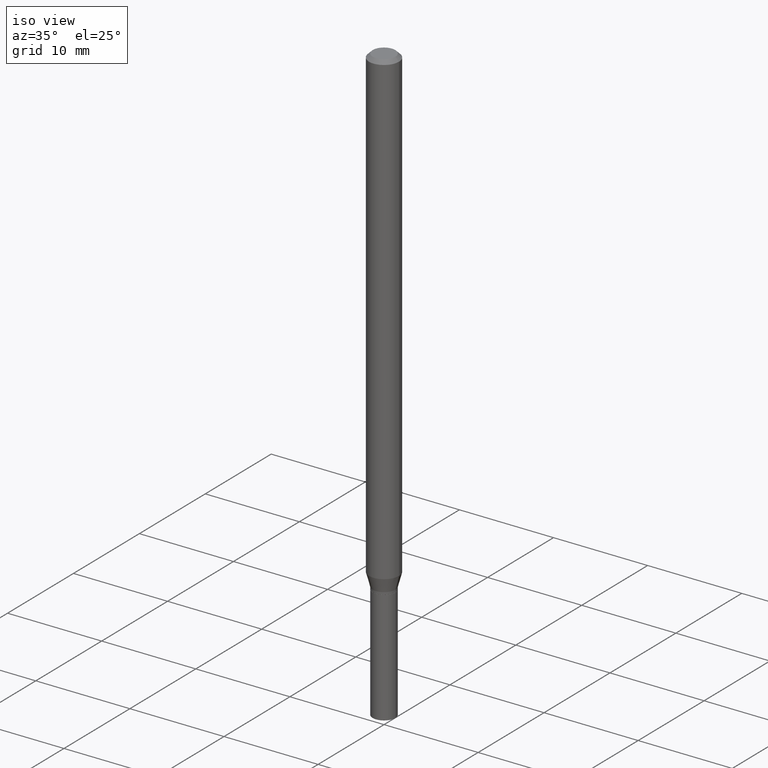
[diagram: clean part render]
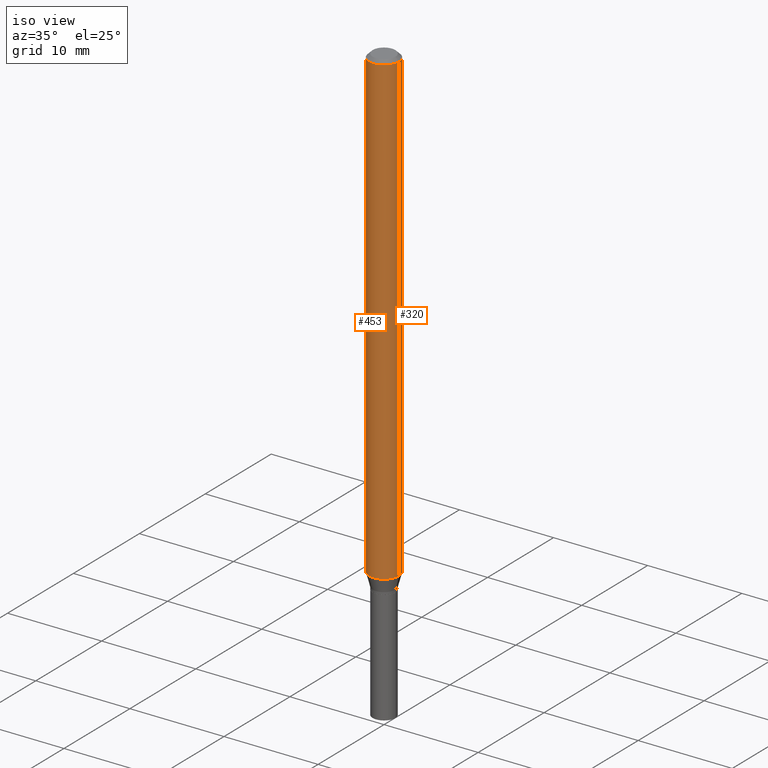
[diagram: same view with one multi-face feature highlighted, each face labeled with its STEP entity id]
A machine part, iso view. The highlighted faces form ONE feature: a constant-radius fillet chain: 2 tangent blend faces with common blend radius 1.5875 mm. The faces share edges in the B-rep.
Their STEP definitions:
[1] entity #320 (Cylinder):
#23 = CARTESIAN_POINT ( 'NONE',  ( 3.668203209277705088E-31, -5.237222008264718399E-17, -0.01499999999999999944 ) ) ;
#30 = VERTEX_POINT ( 'NONE', #137 ) ;
#31 = EDGE_CURVE ( 'NONE', #30, #222, #383, .T. ) ;
#32 = ORIENTED_EDGE ( 'NONE', *, *, #161, .F. ) ;
#42 = VERTEX_POINT ( 'NONE', #55 ) ;
#55 = CARTESIAN_POINT ( 'NONE',  ( 0.06250000000000000000, -7.276314278870707076E-15, -1.959019237886465481 ) ) ;
#65 = VECTOR ( 'NONE', #461, 39.37007874015748143 ) ;
#72 = AXIS2_PLACEMENT_3D ( 'NONE', #326, #463, #111 ) ;
#107 = VECTOR ( 'NONE', #281, 39.37007874015748143 ) ;
#111 = DIRECTION ( 'NONE',  ( 1.000000000000000000, -6.982962677686266711E-15, 4.876176775795935793E-29 ) ) ;
#132 = CIRCLE ( 'NONE', #255, 0.06250000000000000000 ) ;
#137 = CARTESIAN_POINT ( 'NONE',  ( -0.06250000000000000000, -6.395789901665252001E-15, -1.959019237886465481 ) ) ;
#148 = CARTESIAN_POINT ( 'NONE',  ( 0.06250000000000000000, -4.888073874380388472E-16, -0.01499999999999999944 ) ) ;
#161 = EDGE_CURVE ( 'NONE', #361, #222, #132, .T. ) ;
#170 = CARTESIAN_POINT ( 'NONE',  ( -0.06250000000000000000, -3.002036455948918824E-15, -0.01499999999999999944 ) ) ;
#173 = EDGE_CURVE ( 'NONE', #42, #30, #449, .T. ) ;
#181 = CYLINDRICAL_SURFACE ( 'NONE', #72, 0.06250000000000000000 ) ;
#221 = FACE_OUTER_BOUND ( 'NONE', #305, .T. ) ;
#222 = VERTEX_POINT ( 'NONE', #170 ) ;
#241 = ORIENTED_EDGE ( 'NONE', *, *, #31, .T. ) ;
#255 = AXIS2_PLACEMENT_3D ( 'NONE', #23, #356, #308 ) ;
#260 = ORIENTED_EDGE ( 'NONE', *, *, #353, .F. ) ;
#273 = LINE ( 'NONE', #299, #65 ) ;
#279 = CARTESIAN_POINT ( 'NONE',  ( -0.06250000000000000000, 4.440892098500626162E-16, -3.074334431409316114E-30 ) ) ;
#281 = DIRECTION ( 'NONE',  ( -2.445468806185136877E-29, 3.491481338843145188E-15, 1.000000000000000000 ) ) ;
#291 = CARTESIAN_POINT ( 'NONE',  ( 4.790720436967930841E-29, -6.839879111515315406E-15, -1.959019237886465481 ) ) ;
#299 = CARTESIAN_POINT ( 'NONE',  ( 0.06250000000000000000, -4.364351673553916694E-16, 3.047610484872459871E-30 ) ) ;
#305 = EDGE_LOOP ( 'NONE', ( #425, #241, #32, #260 ) ) ;
#308 = DIRECTION ( 'NONE',  ( 1.000000000000000000, -6.982962677686266711E-15, 0.000000000000000000 ) ) ;
#310 = AXIS2_PLACEMENT_3D ( 'NONE', #291, #464, #460 ) ;
#320 = ADVANCED_FACE ( 'NONE', ( #221 ), #181, .T. ) ;
#326 = CARTESIAN_POINT ( 'NONE',  ( 0.000000000000000000, 0.000000000000000000, 0.000000000000000000 ) ) ;
#353 = EDGE_CURVE ( 'NONE', #42, #361, #273, .T. ) ;
#356 = DIRECTION ( 'NONE',  ( -2.445468806185136597E-29, 3.491481338843145583E-15, 1.000000000000000000 ) ) ;
#361 = VERTEX_POINT ( 'NONE', #148 ) ;
#383 = LINE ( 'NONE', #279, #107 ) ;
#425 = ORIENTED_EDGE ( 'NONE', *, *, #173, .T. ) ;
#449 = CIRCLE ( 'NONE', #310, 0.06250000000000000000 ) ;
#460 = DIRECTION ( 'NONE',  ( 1.000000000000000000, -6.982962677686262766E-15, 0.000000000000000000 ) ) ;
#461 = DIRECTION ( 'NONE',  ( -2.445468806185136877E-29, 3.491481338843145188E-15, 1.000000000000000000 ) ) ;
#463 = DIRECTION ( 'NONE',  ( -2.445468806185136597E-29, 3.491481338843145583E-15, 1.000000000000000000 ) ) ;
#464 = DIRECTION ( 'NONE',  ( -2.445468806185136597E-29, 3.491481338843145583E-15, 1.000000000000000000 ) ) ;
[2] entity #453 (Cylinder):
#12 = ORIENTED_EDGE ( 'NONE', *, *, #89, .F. ) ;
#22 = ORIENTED_EDGE ( 'NONE', *, *, #154, .T. ) ;
#30 = VERTEX_POINT ( 'NONE', #137 ) ;
#31 = EDGE_CURVE ( 'NONE', #30, #222, #383, .T. ) ;
#42 = VERTEX_POINT ( 'NONE', #55 ) ;
#48 = CARTESIAN_POINT ( 'NONE',  ( 4.790720436967930841E-29, -6.839879111515315406E-15, -1.959019237886465481 ) ) ;
#51 = DIRECTION ( 'NONE',  ( -2.445468806185136597E-29, 3.491481338843145583E-15, 1.000000000000000000 ) ) ;
#55 = CARTESIAN_POINT ( 'NONE',  ( 0.06250000000000000000, -7.276314278870707076E-15, -1.959019237886465481 ) ) ;
#65 = VECTOR ( 'NONE', #461, 39.37007874015748143 ) ;
#77 = AXIS2_PLACEMENT_3D ( 'NONE', #417, #198, #134 ) ;
#89 = EDGE_CURVE ( 'NONE', #222, #361, #292, .T. ) ;
#107 = VECTOR ( 'NONE', #281, 39.37007874015748143 ) ;
#134 = DIRECTION ( 'NONE',  ( 1.000000000000000000, -6.982962677686266711E-15, 0.000000000000000000 ) ) ;
#137 = CARTESIAN_POINT ( 'NONE',  ( -0.06250000000000000000, -6.395789901665252001E-15, -1.959019237886465481 ) ) ;
#138 = EDGE_LOOP ( 'NONE', ( #375, #22, #233, #12 ) ) ;
#148 = CARTESIAN_POINT ( 'NONE',  ( 0.06250000000000000000, -4.888073874380388472E-16, -0.01499999999999999944 ) ) ;
#154 = EDGE_CURVE ( 'NONE', #30, #42, #411, .T. ) ;
#159 = DIRECTION ( 'NONE',  ( 1.000000000000000000, -6.982962677686266711E-15, 4.876176775795935793E-29 ) ) ;
#162 = DIRECTION ( 'NONE',  ( 1.000000000000000000, -6.982962677686262766E-15, 0.000000000000000000 ) ) ;
#163 = FACE_OUTER_BOUND ( 'NONE', #138, .T. ) ;
#170 = CARTESIAN_POINT ( 'NONE',  ( -0.06250000000000000000, -3.002036455948918824E-15, -0.01499999999999999944 ) ) ;
#198 = DIRECTION ( 'NONE',  ( -2.445468806185136597E-29, 3.491481338843145583E-15, 1.000000000000000000 ) ) ;
#222 = VERTEX_POINT ( 'NONE', #170 ) ;
#233 = ORIENTED_EDGE ( 'NONE', *, *, #353, .T. ) ;
#273 = LINE ( 'NONE', #299, #65 ) ;
#279 = CARTESIAN_POINT ( 'NONE',  ( -0.06250000000000000000, 4.440892098500626162E-16, -3.074334431409316114E-30 ) ) ;
#281 = DIRECTION ( 'NONE',  ( -2.445468806185136877E-29, 3.491481338843145188E-15, 1.000000000000000000 ) ) ;
#292 = CIRCLE ( 'NONE', #77, 0.06250000000000000000 ) ;
#299 = CARTESIAN_POINT ( 'NONE',  ( 0.06250000000000000000, -4.364351673553916694E-16, 3.047610484872459871E-30 ) ) ;
#343 = AXIS2_PLACEMENT_3D ( 'NONE', #435, #440, #159 ) ;
#353 = EDGE_CURVE ( 'NONE', #42, #361, #273, .T. ) ;
#361 = VERTEX_POINT ( 'NONE', #148 ) ;
#375 = ORIENTED_EDGE ( 'NONE', *, *, #31, .F. ) ;
#383 = LINE ( 'NONE', #279, #107 ) ;
#407 = CYLINDRICAL_SURFACE ( 'NONE', #343, 0.06250000000000000000 ) ;
#411 = CIRCLE ( 'NONE', #441, 0.06250000000000000000 ) ;
#417 = CARTESIAN_POINT ( 'NONE',  ( 3.668203209277705088E-31, -5.237222008264718399E-17, -0.01499999999999999944 ) ) ;
#435 = CARTESIAN_POINT ( 'NONE',  ( 0.000000000000000000, 0.000000000000000000, 0.000000000000000000 ) ) ;
#440 = DIRECTION ( 'NONE',  ( -2.445468806185136597E-29, 3.491481338843145583E-15, 1.000000000000000000 ) ) ;
#441 = AXIS2_PLACEMENT_3D ( 'NONE', #48, #51, #162 ) ;
#453 = ADVANCED_FACE ( 'NONE', ( #163 ), #407, .T. ) ;
#461 = DIRECTION ( 'NONE',  ( -2.445468806185136877E-29, 3.491481338843145188E-15, 1.000000000000000000 ) ) ;